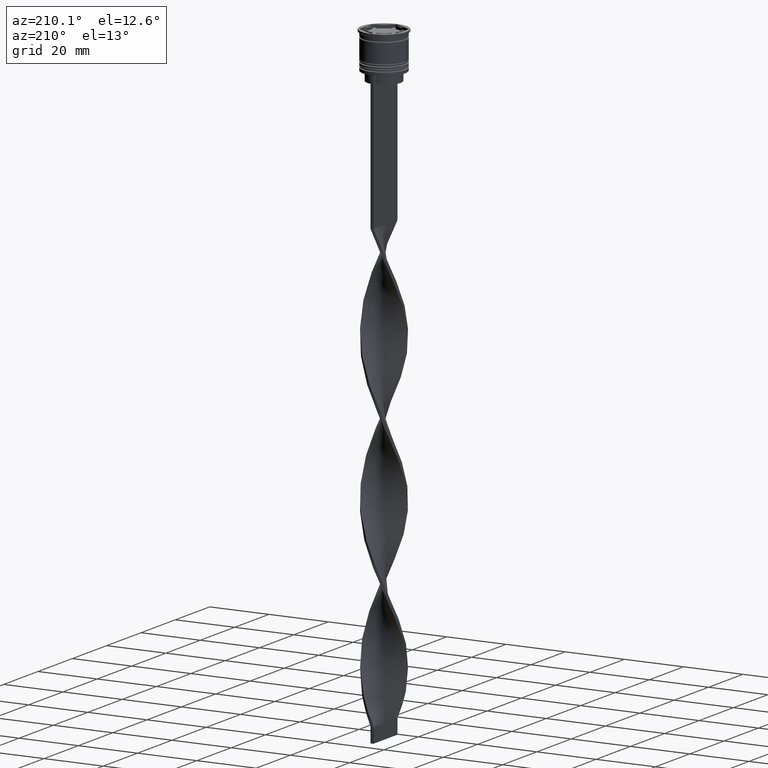
[diagram: clean part render]
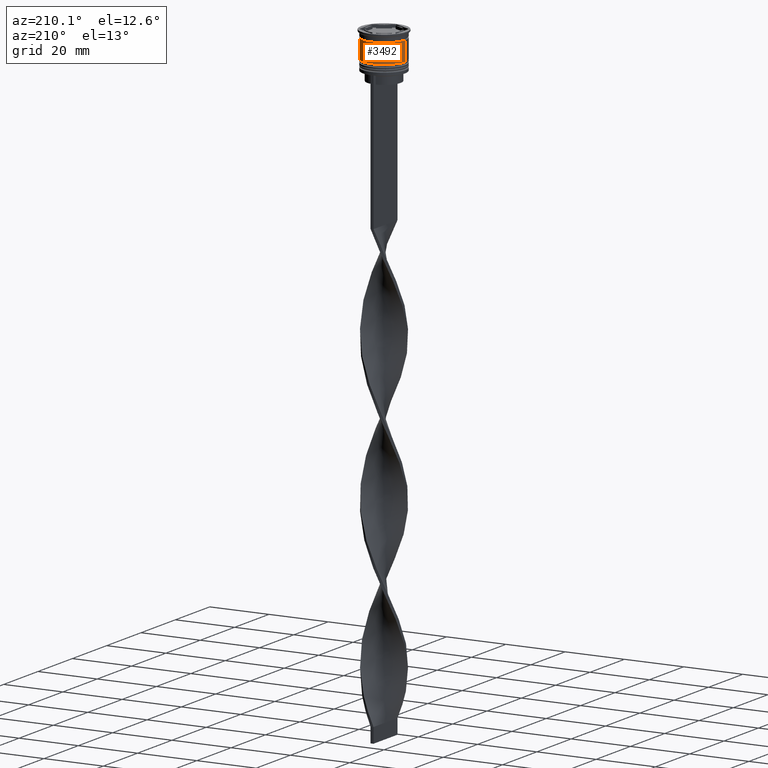
[diagram: same view with one face highlighted and labeled with its STEP entity id]
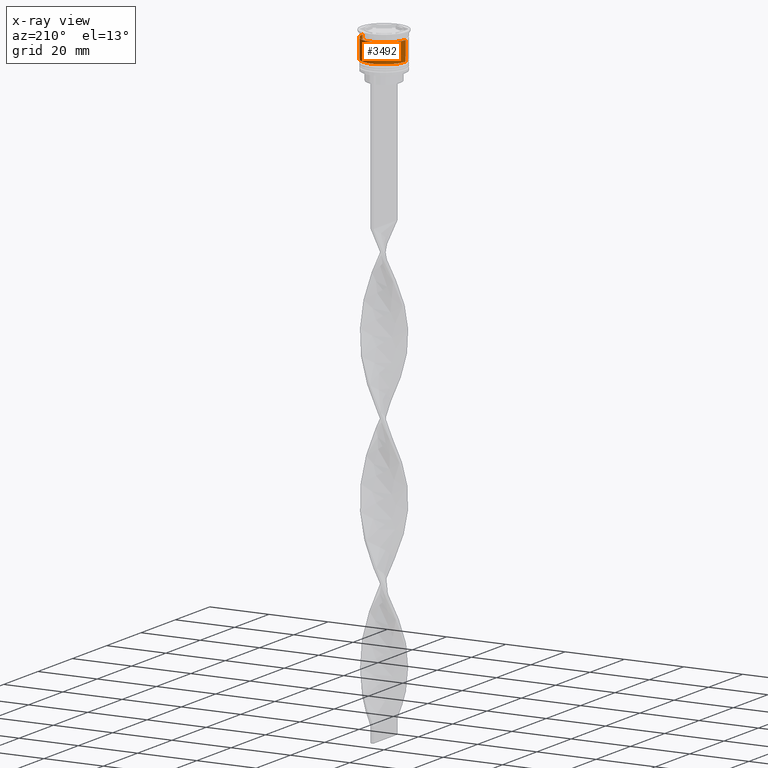
[diagram: x-ray of the same camera — body ghosted, the highlighted face saturated]
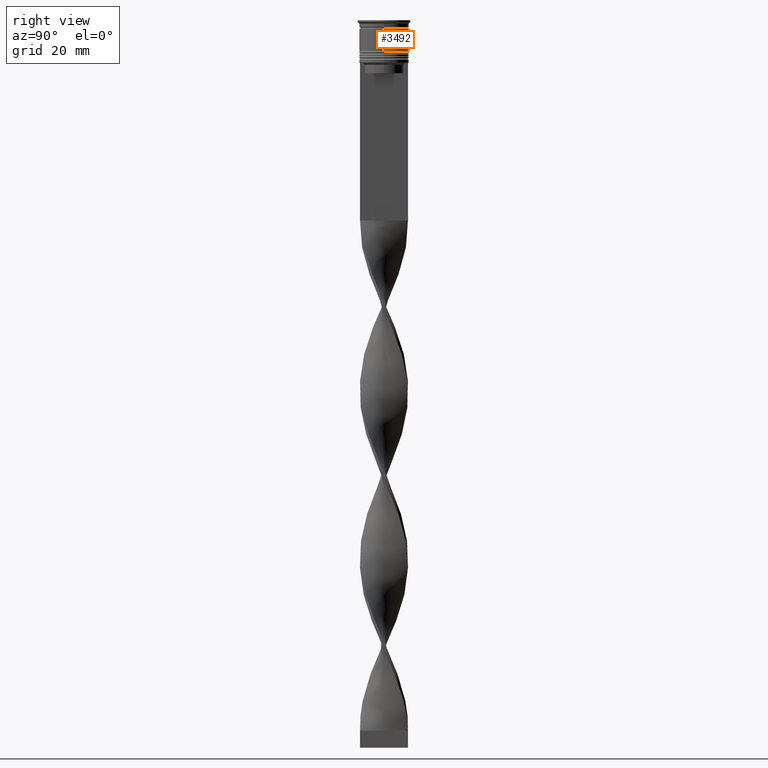
[diagram: same view with one face highlighted and labeled with its STEP entity id]
A machine part, auxiliary view. The second image highlights one B-rep face of the part: STEP entity #3492.
The next image is the same camera in x-ray: the body ghosted, the highlighted face saturated — about 0% of this face is hidden behind the body in this view.
A second angle (right view) of the same face is appended — the face is thin or edge-on in the first view.
In plain terms, the highlighted cylindrical surface (edge-blend (fillet) strip) has radius 7.25 mm, axis along (-0, -0, 1).
Its self-contained STEP definition (entity closure, byte-faithful):
#21 = DIRECTION ( 'NONE',  ( -0.000000000000000000, -0.000000000000000000, 1.000000000000000000 ) ) ;
#78 = FACE_OUTER_BOUND ( 'NONE', #652, .T. ) ;
#266 = DIRECTION ( 'NONE',  ( -0.000000000000000000, -0.000000000000000000, 1.000000000000000000 ) ) ;
#538 = DIRECTION ( 'NONE',  ( -0.000000000000000000, -0.000000000000000000, 1.000000000000000000 ) ) ;
#652 = EDGE_LOOP ( 'NONE', ( #2597, #3652, #2020, #1720 ) ) ;
#729 = DIRECTION ( 'NONE',  ( 1.000000000000000000, 0.000000000000000000, 0.000000000000000000 ) ) ;
#877 = CARTESIAN_POINT ( 'NONE',  ( 0.000000000000000000, 0.000000000000000000, -9.000000000000001776 ) ) ;
#972 = CARTESIAN_POINT ( 'NONE',  ( 7.249999999999997335, 0.000000000000000000, -2.500000000000000444 ) ) ;
#1162 = DIRECTION ( 'NONE',  ( -0.000000000000000000, -0.000000000000000000, 1.000000000000000000 ) ) ;
#1236 = EDGE_CURVE ( 'NONE', #1647, #1453, #2939, .T. ) ;
#1347 = CIRCLE ( 'NONE', #1657, 7.249999999999997335 ) ;
#1453 = VERTEX_POINT ( 'NONE', #972 ) ;
#1517 = VERTEX_POINT ( 'NONE', #1641 ) ;
#1641 = CARTESIAN_POINT ( 'NONE',  ( -7.249999999999997335, 8.878689293818308102E-16, -2.500000000000000444 ) ) ;
#1647 = VERTEX_POINT ( 'NONE', #3169 ) ;
#1657 = AXIS2_PLACEMENT_3D ( 'NONE', #1742, #21, #2334 ) ;
#1661 = CIRCLE ( 'NONE', #3802, 7.250000000000000888 ) ;
#1720 = ORIENTED_EDGE ( 'NONE', *, *, #1236, .F. ) ;
#1742 = CARTESIAN_POINT ( 'NONE',  ( 0.000000000000000000, 0.000000000000000000, -2.500000000000000444 ) ) ;
#1793 = CARTESIAN_POINT ( 'NONE',  ( -7.250000000000000888, 8.878689293818312046E-16, -9.000000000000001776 ) ) ;
#1909 = DIRECTION ( 'NONE',  ( -0.000000000000000000, -0.000000000000000000, 1.000000000000000000 ) ) ;
#2020 = ORIENTED_EDGE ( 'NONE', *, *, #2322, .F. ) ;
#2322 = EDGE_CURVE ( 'NONE', #1453, #1517, #1347, .T. ) ;
#2334 = DIRECTION ( 'NONE',  ( 1.000000000000000000, 0.000000000000000000, 0.000000000000000000 ) ) ;
#2347 = EDGE_CURVE ( 'NONE', #2459, #1517, #2350, .T. ) ;
#2348 = CARTESIAN_POINT ( 'NONE',  ( 7.249999999999999112, 0.000000000000000000, 0.000000000000000000 ) ) ;
#2350 = LINE ( 'NONE', #3774, #2812 ) ;
#2459 = VERTEX_POINT ( 'NONE', #1793 ) ;
#2597 = ORIENTED_EDGE ( 'NONE', *, *, #3638, .T. ) ;
#2812 = VECTOR ( 'NONE', #1162, 1000.000000000000000 ) ;
#2878 = VECTOR ( 'NONE', #538, 1000.000000000000000 ) ;
#2939 = LINE ( 'NONE', #2348, #2878 ) ;
#3008 = AXIS2_PLACEMENT_3D ( 'NONE', #3618, #1909, #729 ) ;
#3169 = CARTESIAN_POINT ( 'NONE',  ( 7.250000000000000888, 0.000000000000000000, -9.000000000000001776 ) ) ;
#3492 = ADVANCED_FACE ( 'NONE', ( #78 ), #3654, .T. ) ;
#3618 = CARTESIAN_POINT ( 'NONE',  ( 0.000000000000000000, 0.000000000000000000, 0.000000000000000000 ) ) ;
#3638 = EDGE_CURVE ( 'NONE', #1647, #2459, #1661, .T. ) ;
#3652 = ORIENTED_EDGE ( 'NONE', *, *, #2347, .T. ) ;
#3654 = CYLINDRICAL_SURFACE ( 'NONE', #3008, 7.249999999999999112 ) ;
#3774 = CARTESIAN_POINT ( 'NONE',  ( -7.249999999999999112, 8.878689293818310074E-16, 0.000000000000000000 ) ) ;
#3797 = DIRECTION ( 'NONE',  ( 1.000000000000000000, 0.000000000000000000, 0.000000000000000000 ) ) ;
#3802 = AXIS2_PLACEMENT_3D ( 'NONE', #877, #266, #3797 ) ;